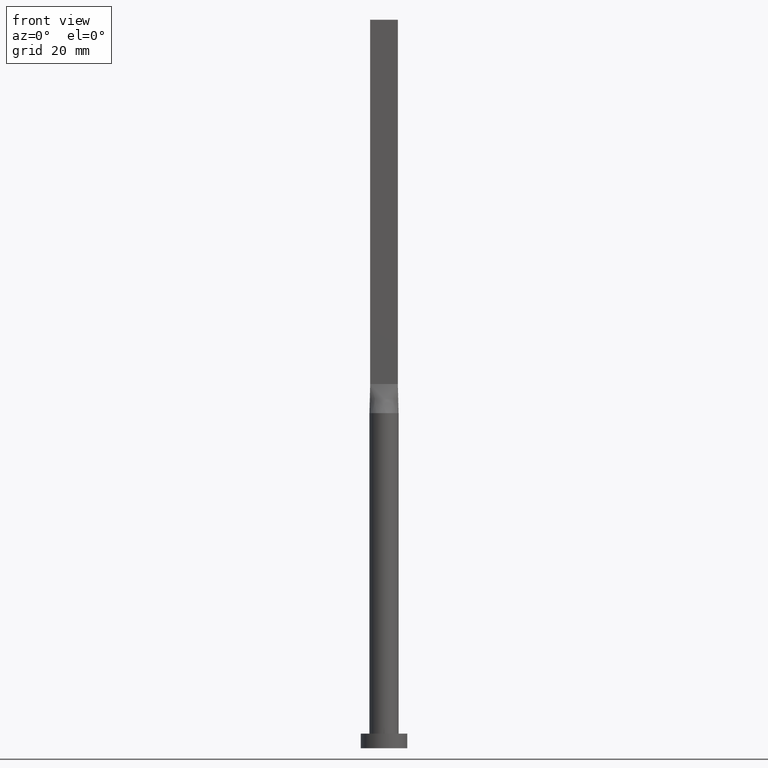
[diagram: clean part render]
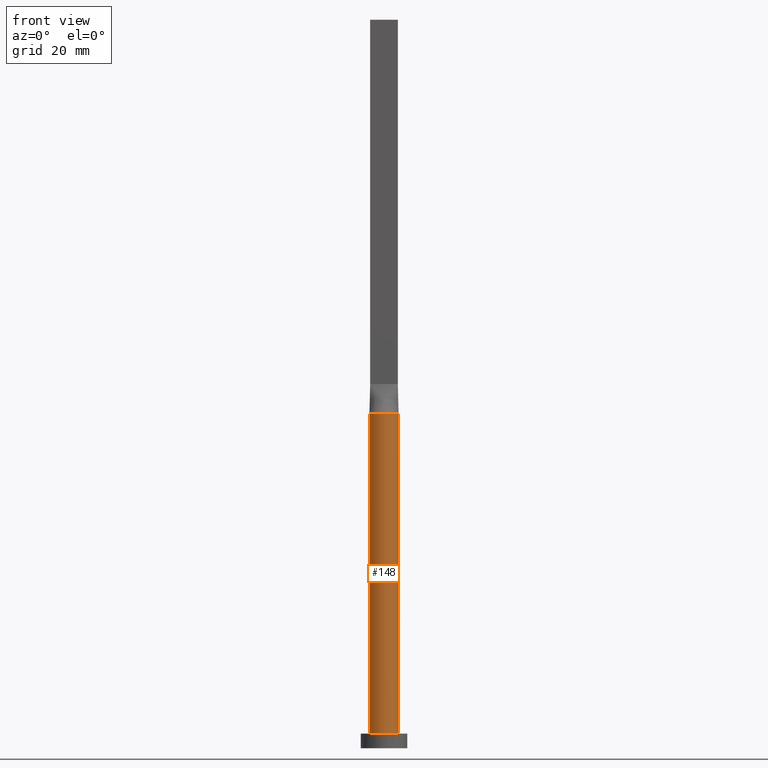
[diagram: same view with one face highlighted and labeled with its STEP entity id]
A machine part, front view. The second image highlights one B-rep face of the part: STEP entity #148.
In plain terms, the highlighted cylindrical surface (edge-blend (fillet) strip) has radius 5 mm, axis along (-0, -0, -1).
Its self-contained STEP definition (entity closure, byte-faithful):
#2 = LINE ( 'NONE', #451, #165 ) ;
#3 = CARTESIAN_POINT ( 'NONE',  ( -5.000000000000000000, 0.000000000000000000, 115.0000000000000000 ) ) ;
#4 = CARTESIAN_POINT ( 'NONE',  ( 5.000000000000000000, 6.123233995736766282E-16, 5.000000000000000000 ) ) ;
#5 = VERTEX_POINT ( 'NONE', #126 ) ;
#16 = DIRECTION ( 'NONE',  ( -0.000000000000000000, -0.000000000000000000, -1.000000000000000000 ) ) ;
#17 = CARTESIAN_POINT ( 'NONE',  ( 0.000000000000000000, 0.000000000000000000, 115.0000000000000000 ) ) ;
#28 = CARTESIAN_POINT ( 'NONE',  ( 0.000000000000000000, 0.000000000000000000, 5.000000000000000000 ) ) ;
#32 = VERTEX_POINT ( 'NONE', #182 ) ;
#38 = ORIENTED_EDGE ( 'NONE', *, *, #539, .F. ) ;
#44 = CARTESIAN_POINT ( 'NONE',  ( 0.000000000000000000, 0.000000000000000000, 115.0000000000000000 ) ) ;
#46 = CIRCLE ( 'NONE', #376, 5.000000000000000000 ) ;
#54 = DIRECTION ( 'NONE',  ( 1.000000000000000000, 0.000000000000000000, 0.000000000000000000 ) ) ;
#62 = DIRECTION ( 'NONE',  ( -0.000000000000000000, -0.000000000000000000, -1.000000000000000000 ) ) ;
#82 = AXIS2_PLACEMENT_3D ( 'NONE', #536, #398, #54 ) ;
#85 = EDGE_CURVE ( 'NONE', #251, #381, #46, .T. ) ;
#91 = CARTESIAN_POINT ( 'NONE',  ( -5.000000000000000000, 0.000000000000000000, 5.000000000000000000 ) ) ;
#121 = EDGE_CURVE ( 'NONE', #5, #251, #145, .T. ) ;
#126 = CARTESIAN_POINT ( 'NONE',  ( -4.938821632323166178, -0.7798139456827060112, 115.0000000000000000 ) ) ;
#134 = VERTEX_POINT ( 'NONE', #91 ) ;
#136 = DIRECTION ( 'NONE',  ( 1.000000000000000000, 2.664535259100375697E-15, 0.000000000000000000 ) ) ;
#145 = CIRCLE ( 'NONE', #82, 5.000000000000000000 ) ;
#148 = ADVANCED_FACE ( 'NONE', ( #306 ), #437, .T. ) ;
#156 = DIRECTION ( 'NONE',  ( -1.000000000000000000, 0.000000000000000000, 0.000000000000000000 ) ) ;
#157 = VERTEX_POINT ( 'NONE', #4 ) ;
#165 = VECTOR ( 'NONE', #479, 1000.000000000000000 ) ;
#182 = CARTESIAN_POINT ( 'NONE',  ( -4.999812818728077701, -1.193032336741890821E-15, 115.0000000000000000 ) ) ;
#191 = VECTOR ( 'NONE', #16, 1000.000000000000000 ) ;
#199 = ORIENTED_EDGE ( 'NONE', *, *, #380, .T. ) ;
#204 = AXIS2_PLACEMENT_3D ( 'NONE', #574, #348, #310 ) ;
#205 = CIRCLE ( 'NONE', #377, 5.000000000000000000 ) ;
#224 = ORIENTED_EDGE ( 'NONE', *, *, #610, .T. ) ;
#251 = VERTEX_POINT ( 'NONE', #344 ) ;
#260 = EDGE_CURVE ( 'NONE', #32, #5, #509, .T. ) ;
#306 = FACE_OUTER_BOUND ( 'NONE', #523, .T. ) ;
#310 = DIRECTION ( 'NONE',  ( 1.000000000000000000, 0.000000000000000000, 0.000000000000000000 ) ) ;
#325 = DIRECTION ( 'NONE',  ( 1.000000000000000000, 0.000000000000000000, 0.000000000000000000 ) ) ;
#344 = CARTESIAN_POINT ( 'NONE',  ( 4.938833698301754893, -0.7798158709413661738, 115.0000000000000000 ) ) ;
#348 = DIRECTION ( 'NONE',  ( 0.000000000000000000, 0.000000000000000000, 1.000000000000000000 ) ) ;
#376 = AXIS2_PLACEMENT_3D ( 'NONE', #44, #382, #136 ) ;
#377 = AXIS2_PLACEMENT_3D ( 'NONE', #28, #598, #325 ) ;
#380 = EDGE_CURVE ( 'NONE', #32, #134, #495, .T. ) ;
#381 = VERTEX_POINT ( 'NONE', #453 ) ;
#382 = DIRECTION ( 'NONE',  ( 0.000000000000000000, 0.000000000000000000, 1.000000000000000000 ) ) ;
#398 = DIRECTION ( 'NONE',  ( 0.000000000000000000, 0.000000000000000000, 1.000000000000000000 ) ) ;
#437 = CYLINDRICAL_SURFACE ( 'NONE', #475, 5.000000000000000000 ) ;
#451 = CARTESIAN_POINT ( 'NONE',  ( 5.000000000000000000, 6.123233995736766282E-16, 115.0000000000000000 ) ) ;
#453 = CARTESIAN_POINT ( 'NONE',  ( 4.999812818728077701, 1.241126956226958231E-15, 115.0000000000000000 ) ) ;
#475 = AXIS2_PLACEMENT_3D ( 'NONE', #17, #62, #156 ) ;
#479 = DIRECTION ( 'NONE',  ( -0.000000000000000000, -0.000000000000000000, -1.000000000000000000 ) ) ;
#483 = ORIENTED_EDGE ( 'NONE', *, *, #121, .F. ) ;
#495 = LINE ( 'NONE', #3, #191 ) ;
#509 = CIRCLE ( 'NONE', #204, 5.000000000000000000 ) ;
#523 = EDGE_LOOP ( 'NONE', ( #38, #575, #483, #612, #199, #224 ) ) ;
#536 = CARTESIAN_POINT ( 'NONE',  ( 0.000000000000000000, 0.000000000000000000, 115.0000000000000000 ) ) ;
#539 = EDGE_CURVE ( 'NONE', #381, #157, #2, .T. ) ;
#574 = CARTESIAN_POINT ( 'NONE',  ( 0.000000000000000000, 0.000000000000000000, 115.0000000000000000 ) ) ;
#575 = ORIENTED_EDGE ( 'NONE', *, *, #85, .F. ) ;
#598 = DIRECTION ( 'NONE',  ( 0.000000000000000000, 0.000000000000000000, 1.000000000000000000 ) ) ;
#610 = EDGE_CURVE ( 'NONE', #134, #157, #205, .T. ) ;
#612 = ORIENTED_EDGE ( 'NONE', *, *, #260, .F. ) ;